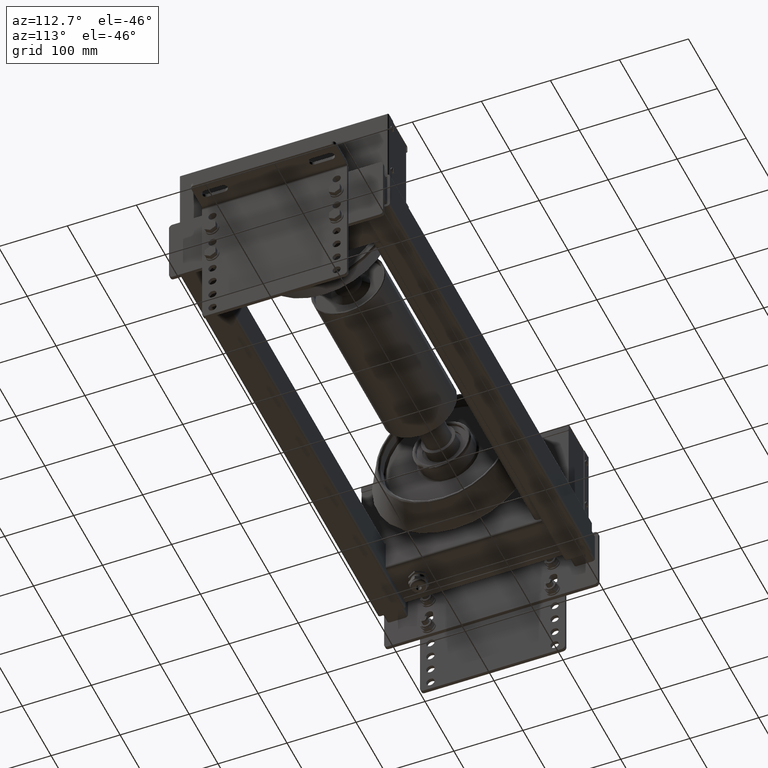
[diagram: clean part render]
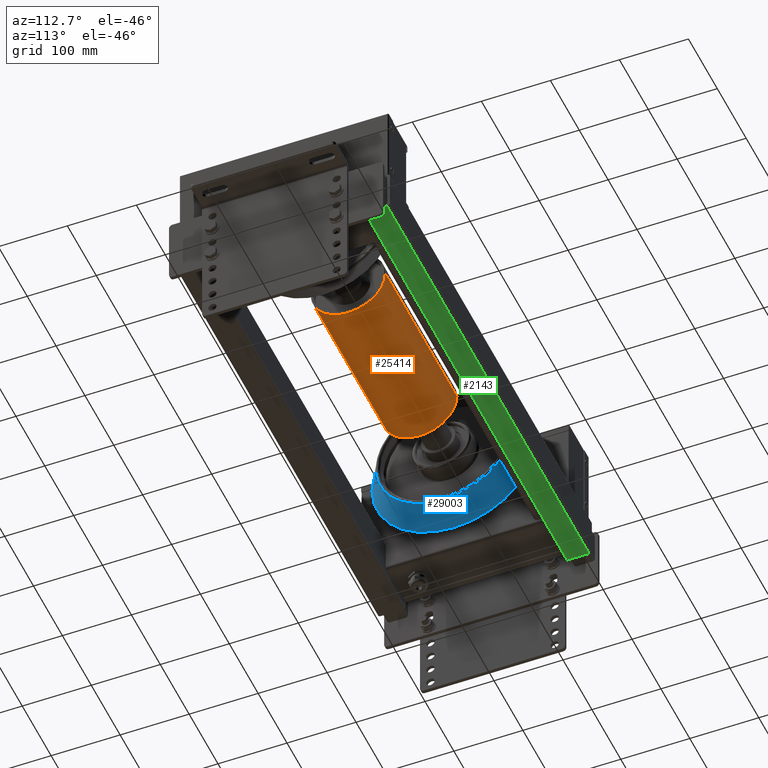
[diagram: same view with three faces highlighted in distinct colors, each labeled with its STEP entity id]
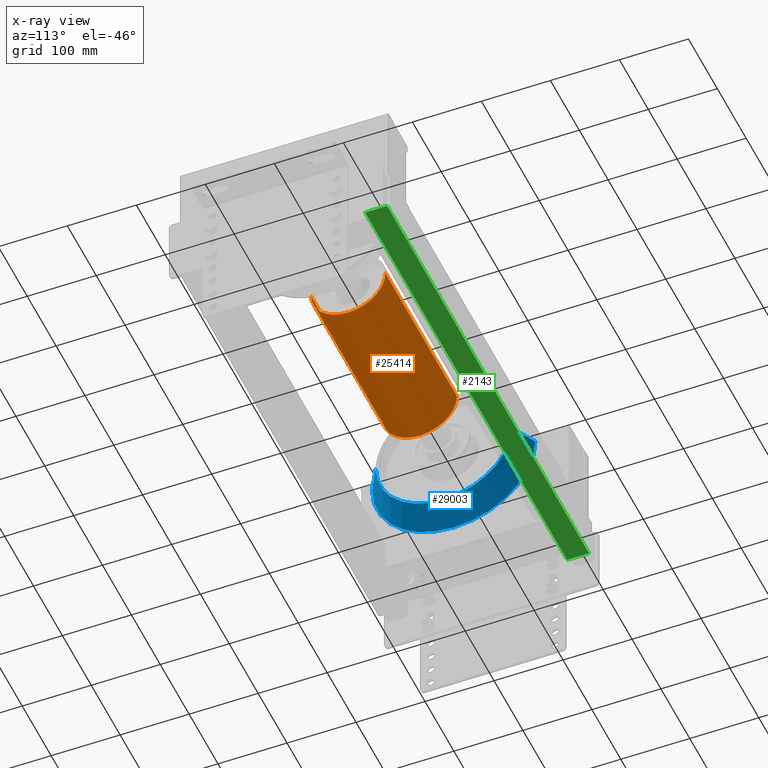
[diagram: x-ray of the same camera — body ghosted, the three highlighted faces saturated]
A machine part, auxiliary view with three faces highlighted in distinct colors.
The next image is the same camera in x-ray (body ghosted, the three faces saturated) — at least one of them is partly hidden behind the body in this view.
Their STEP definitions:

[orange] entity #25414 — the highlighted cylindrical surface (partial cylindrical patch) has radius 54 mm, axis along (1, 0, -0).
#25319=CARTESIAN_POINT('',(16.500000000000000,0.0,-54.000000000000028));
#25320=VERTEX_POINT('',#25319);
#25346=CARTESIAN_POINT('',(16.500000000000000,-53.999999999999972,-6.613093E-015));
#25347=VERTEX_POINT('',#25346);
#25355=CARTESIAN_POINT('',(16.500000000000000,0.0,0.0));
#25356=DIRECTION('',(1.0,0.0,0.0));
#25357=DIRECTION('',(0.0,1.0,0.0));
#25358=AXIS2_PLACEMENT_3D('',#25355,#25356,#25357);
#25359=CIRCLE('',#25358,54.000000000000028);
#25360=EDGE_CURVE('',#25347,#25320,#25359,.T.);
#25365=CARTESIAN_POINT('',(-107.499999999999990,0.0,0.0));
#25366=DIRECTION('',(1.0,0.0,0.0));
#25367=DIRECTION('',(0.0,1.0,0.0));
#25368=AXIS2_PLACEMENT_3D('',#25365,#25366,#25367);
#25369=CYLINDRICAL_SURFACE('',#25368,53.999999999999972);
#25370=CARTESIAN_POINT('',(16.500000000000000,54.000000000000028,0.0));
#25371=VERTEX_POINT('',#25370);
#25372=CARTESIAN_POINT('',(-231.499999999999970,53.999999999999915,0.0));
#25373=VERTEX_POINT('',#25372);
#25374=CARTESIAN_POINT('',(16.500000000000000,54.000000000000028,0.0));
#25375=DIRECTION('',(-1.0,0.0,0.0));
#25376=VECTOR('',#25375,247.999999999999970);
#25377=LINE('',#25374,#25376);
#25378=EDGE_CURVE('',#25371,#25373,#25377,.T.);
#25379=ORIENTED_EDGE('',*,*,#25378,.F.);
#25380=CARTESIAN_POINT('',(16.500000000000000,0.0,0.0));
#25381=DIRECTION('',(1.0,0.0,0.0));
#25382=DIRECTION('',(0.0,1.0,0.0));
#25383=AXIS2_PLACEMENT_3D('',#25380,#25381,#25382);
#25384=CIRCLE('',#25383,54.000000000000028);
#25385=EDGE_CURVE('',#25320,#25371,#25384,.T.);
#25386=ORIENTED_EDGE('',*,*,#25385,.F.);
#25387=ORIENTED_EDGE('',*,*,#25360,.F.);
#25388=CARTESIAN_POINT('',(-231.499999999999970,-53.999999999999972,-6.613093E-015));
#25389=VERTEX_POINT('',#25388);
#25390=CARTESIAN_POINT('',(16.500000000000000,-53.999999999999972,-6.613093E-015));
#25391=DIRECTION('',(-1.0,0.0,0.0));
#25392=VECTOR('',#25391,247.999999999999970);
#25393=LINE('',#25390,#25392);
#25394=EDGE_CURVE('',#25347,#25389,#25393,.T.);
#25395=ORIENTED_EDGE('',*,*,#25394,.T.);
#25396=CARTESIAN_POINT('',(-231.499999999999970,0.0,-53.999999999999915));
#25397=VERTEX_POINT('',#25396);
#25398=CARTESIAN_POINT('',(-231.499999999999970,0.0,0.0));
#25399=DIRECTION('',(1.0,0.0,0.0));
#25400=DIRECTION('',(0.0,1.0,0.0));
#25401=AXIS2_PLACEMENT_3D('',#25398,#25399,#25400);
#25402=CIRCLE('',#25401,53.999999999999915);
#25403=EDGE_CURVE('',#25389,#25397,#25402,.T.);
#25404=ORIENTED_EDGE('',*,*,#25403,.T.);
#25405=CARTESIAN_POINT('',(-231.499999999999970,0.0,0.0));
#25406=DIRECTION('',(1.0,0.0,0.0));
#25407=DIRECTION('',(0.0,1.0,0.0));
#25408=AXIS2_PLACEMENT_3D('',#25405,#25406,#25407);
#25409=CIRCLE('',#25408,53.999999999999915);
#25410=EDGE_CURVE('',#25397,#25373,#25409,.T.);
#25411=ORIENTED_EDGE('',*,*,#25410,.T.);
#25412=EDGE_LOOP('',(#25379,#25386,#25387,#25395,#25404,#25411));
#25413=FACE_OUTER_BOUND('',#25412,.T.);
#25414=ADVANCED_FACE('',(#25413),#25369,.T.);

[blue] entity #29003 — the highlighted conical surface has half-angle 30 deg.
#28652=CARTESIAN_POINT('',(16.249999999999993,-1.450336E-014,118.428947258124050));
#28653=VERTEX_POINT('',#28652);
#28661=CARTESIAN_POINT('',(16.249999999999993,-118.428947258124070,-1.450336E-014));
#28662=VERTEX_POINT('',#28661);
#28663=CARTESIAN_POINT('',(16.249999999999993,0.0,-1.450288E-014));
#28664=DIRECTION('',(1.0,0.0,0.0));
#28665=DIRECTION('',(0.0,-1.0,0.0));
#28666=AXIS2_PLACEMENT_3D('',#28663,#28664,#28665);
#28667=CIRCLE('',#28666,118.428947258124070);
#28668=EDGE_CURVE('',#28653,#28662,#28667,.T.);
#28685=CARTESIAN_POINT('',(16.249999999999993,118.428947258124070,-3.155444E-030));
#28686=VERTEX_POINT('',#28685);
#28687=CARTESIAN_POINT('',(-18.750000000000004,98.221687836487149,-2.405658E-014));
#28688=VERTEX_POINT('',#28687);
#28689=CARTESIAN_POINT('',(16.249999999999993,118.428947258124070,-3.155444E-030));
#28690=DIRECTION('',(-0.866025403784438,-0.500000000000000,-5.952460E-016));
#28691=VECTOR('',#28690,40.414518843273811);
#28692=LINE('',#28689,#28691);
#28693=EDGE_CURVE('',#28686,#28688,#28692,.T.);
#28703=CARTESIAN_POINT('',(-18.750000000000014,-98.221687836487149,-1.202869E-014));
#28704=VERTEX_POINT('',#28703);
#28705=CARTESIAN_POINT('',(16.249999999999993,-118.428947258124070,-1.450336E-014));
#28706=DIRECTION('',(-0.866025403784438,0.500000000000000,6.123234E-017));
#28707=VECTOR('',#28706,40.414518843273818);
#28708=LINE('',#28705,#28707);
#28709=EDGE_CURVE('',#28662,#28704,#28708,.T.);
#28745=CARTESIAN_POINT('',(-18.750000000000000,-1.202869E-014,98.221687836487135));
#28746=VERTEX_POINT('',#28745);
#28747=CARTESIAN_POINT('',(-18.750000000000004,0.0,-1.202829E-014));
#28748=DIRECTION('',(-1.0,0.0,0.0));
#28749=DIRECTION('',(0.0,-1.0,0.0));
#28750=AXIS2_PLACEMENT_3D('',#28747,#28748,#28749);
#28751=CIRCLE('',#28750,98.221687836487149);
#28752=EDGE_CURVE('',#28704,#28746,#28751,.T.);
#28973=CARTESIAN_POINT('',(-18.750000000000004,0.0,-1.202829E-014));
#28974=DIRECTION('',(-1.0,0.0,0.0));
#28975=DIRECTION('',(0.0,-1.0,0.0));
#28976=AXIS2_PLACEMENT_3D('',#28973,#28974,#28975);
#28977=CIRCLE('',#28976,98.221687836487149);
#28978=EDGE_CURVE('',#28746,#28688,#28977,.T.);
#28984=CARTESIAN_POINT('',(0.0,0.0,0.0));
#28985=DIRECTION('',(1.0,0.0,0.0));
#28986=DIRECTION('',(0.0,1.0,0.0));
#28987=AXIS2_PLACEMENT_3D('',#28984,#28985,#28986);
#28988=CONICAL_SURFACE('',#28987,109.047005383792650,30.000000000000021);
#28989=ORIENTED_EDGE('',*,*,#28693,.T.);
#28990=ORIENTED_EDGE('',*,*,#28978,.F.);
#28991=ORIENTED_EDGE('',*,*,#28752,.F.);
#28992=ORIENTED_EDGE('',*,*,#28709,.F.);
#28993=ORIENTED_EDGE('',*,*,#28668,.F.);
#28994=CARTESIAN_POINT('',(16.249999999999993,0.0,-1.450288E-014));
#28995=DIRECTION('',(1.0,0.0,0.0));
#28996=DIRECTION('',(0.0,-1.0,0.0));
#28997=AXIS2_PLACEMENT_3D('',#28994,#28995,#28996);
#28998=CIRCLE('',#28997,118.428947258124070);
#28999=EDGE_CURVE('',#28686,#28653,#28998,.T.);
#29000=ORIENTED_EDGE('',*,*,#28999,.F.);
#29001=EDGE_LOOP('',(#28989,#28990,#28991,#28992,#28993,#29000));
#29002=FACE_OUTER_BOUND('',#29001,.T.);
#29003=ADVANCED_FACE('',(#29002),#28988,.T.);

[green] entity #2143 — the highlighted planar face has unit normal (-0, -0, -1).
#2085=CARTESIAN_POINT('',(16.0,-29.999999999999886,295.0));
#2086=VERTEX_POINT('',#2085);
#2094=CARTESIAN_POINT('',(16.0,-29.999999999999886,-405.0));
#2095=VERTEX_POINT('',#2094);
#2096=CARTESIAN_POINT('',(16.0,-29.999999999999886,-405.0));
#2097=DIRECTION('',(0.0,0.0,1.0));
#2098=VECTOR('',#2097,700.0);
#2099=LINE('',#2096,#2098);
#2100=EDGE_CURVE('',#2095,#2086,#2099,.T.);
#2113=CARTESIAN_POINT('',(16.0,-29.999999999999886,-405.0));
#2114=DIRECTION('',(0.0,-1.0,0.0));
#2115=DIRECTION('',(0.0,0.0,-1.0));
#2116=AXIS2_PLACEMENT_3D('',#2113,#2114,#2115);
#2117=PLANE('',#2116);
#2118=CARTESIAN_POINT('',(-16.0,-29.999999999999886,295.0));
#2119=VERTEX_POINT('',#2118);
#2120=CARTESIAN_POINT('',(16.0,-29.999999999999886,295.0));
#2121=DIRECTION('',(-1.0,0.0,0.0));
#2122=VECTOR('',#2121,32.0);
#2123=LINE('',#2120,#2122);
#2124=EDGE_CURVE('',#2086,#2119,#2123,.T.);
#2125=ORIENTED_EDGE('',*,*,#2124,.T.);
#2126=CARTESIAN_POINT('',(-16.0,-29.999999999999886,-405.0));
#2127=VERTEX_POINT('',#2126);
#2128=CARTESIAN_POINT('',(-16.0,-29.999999999999886,-405.0));
#2129=DIRECTION('',(0.0,0.0,1.0));
#2130=VECTOR('',#2129,700.0);
#2131=LINE('',#2128,#2130);
#2132=EDGE_CURVE('',#2127,#2119,#2131,.T.);
#2133=ORIENTED_EDGE('',*,*,#2132,.F.);
#2134=CARTESIAN_POINT('',(16.0,-29.999999999999886,-405.0));
#2135=DIRECTION('',(-1.0,0.0,0.0));
#2136=VECTOR('',#2135,32.0);
#2137=LINE('',#2134,#2136);
#2138=EDGE_CURVE('',#2095,#2127,#2137,.T.);
#2139=ORIENTED_EDGE('',*,*,#2138,.F.);
#2140=ORIENTED_EDGE('',*,*,#2100,.T.);
#2141=EDGE_LOOP('',(#2125,#2133,#2139,#2140));
#2142=FACE_OUTER_BOUND('',#2141,.T.);
#2143=ADVANCED_FACE('',(#2142),#2117,.T.);